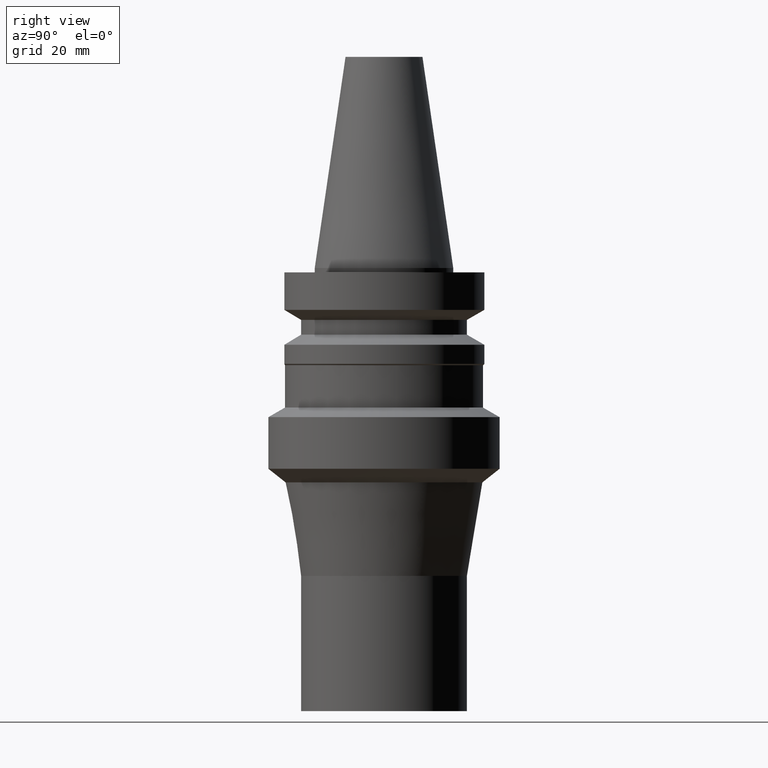
[diagram: clean part render]
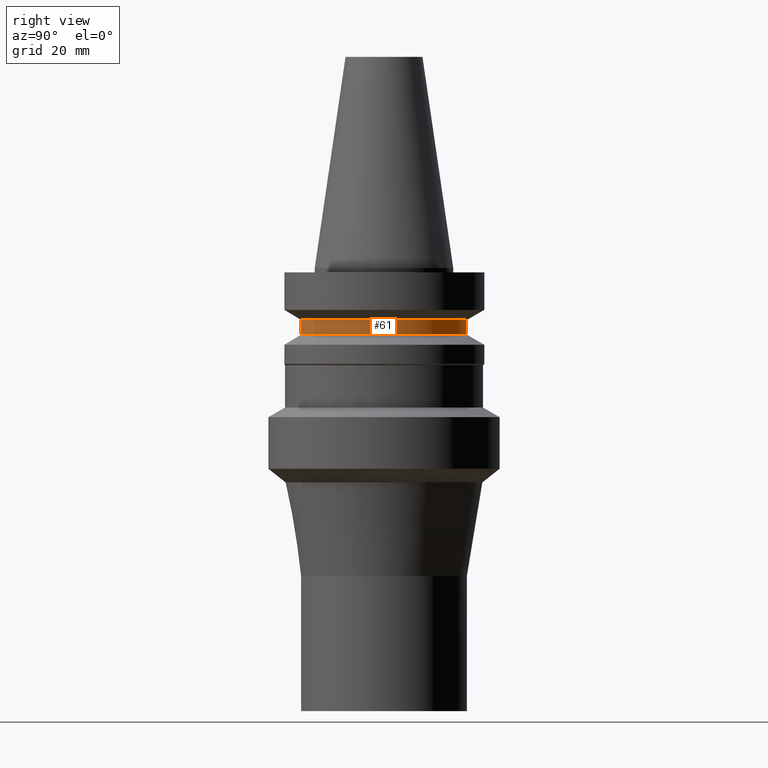
[diagram: same view with one face highlighted and labeled with its STEP entity id]
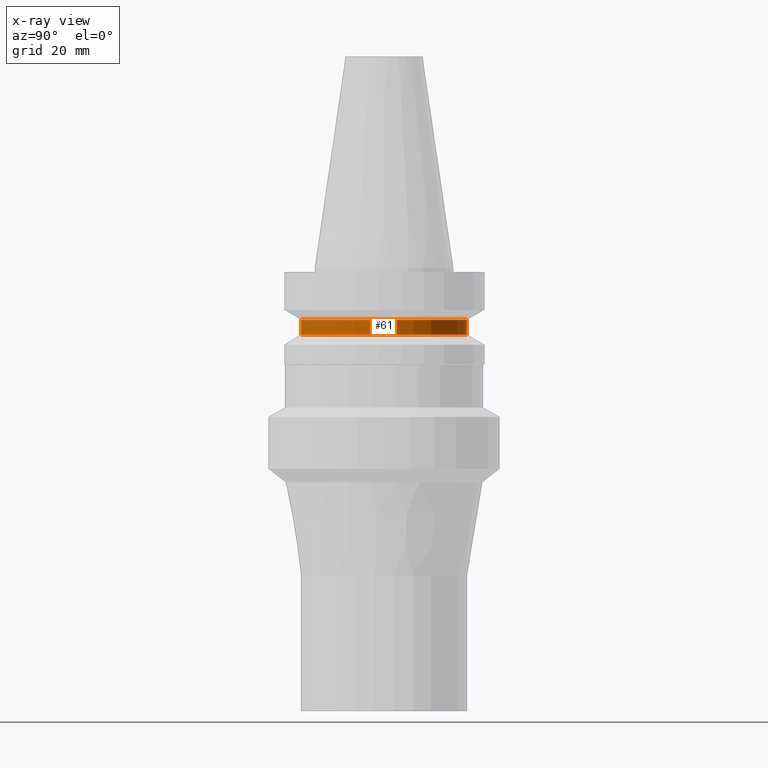
[diagram: x-ray of the same camera — body ghosted, the highlighted face saturated]
A machine part, right view. The second image highlights one B-rep face of the part: STEP entity #61.
The next image is the same camera in x-ray: the body ghosted, the highlighted face saturated — about 0% of this face is hidden behind the body in this view.
In plain terms, the highlighted cylindrical surface (bore or boss wall) has radius 19 mm, axis along (0, 0, -1).
Its self-contained STEP definition (entity closure, byte-faithful):
#61=ADVANCED_FACE('Unnamed[1]',(#164,#165),#166,.T.);
#78=EDGE_CURVE('Unnamed[1]',#191,#191,#192,.T.);
#134=EDGE_CURVE('Unnamed[1]',#278,#278,#279,.T.);
#164=FACE_BOUND('',#306,.T.);
#165=FACE_BOUND('',#307,.T.);
#166=CYLINDRICAL_SURFACE('',#308,19.0);
#191=VERTEX_POINT('',#340);
#192=CIRCLE('',#341,19.0);
#278=VERTEX_POINT('',#448);
#279=CIRCLE('',#449,19.0);
#306=EDGE_LOOP('',(#471));
#307=EDGE_LOOP('',(#472));
#308=AXIS2_PLACEMENT_3D('',#473,#474,#475);
#340=CARTESIAN_POINT('',(9.36279151221199E-016,19.0,-15.29059892));
#341=AXIS2_PLACEMENT_3D('',#502,#503,#504);
#448=CARTESIAN_POINT('',(7.29240495619202E-016,19.0,-11.90940108));
#449=AXIS2_PLACEMENT_3D('',#598,#599,#600);
#471=ORIENTED_EDGE('',*,*,#78,.F.);
#472=ORIENTED_EDGE('',*,*,#134,.T.);
#473=CARTESIAN_POINT('',(8.32759823420201E-016,1.6655196468404E-015,-13.6));
#474=DIRECTION('',(6.12323399573677E-017,1.22464679914735E-016,-1.0));
#475=DIRECTION('',(-1.23259516440783E-032,1.0,1.22464679914735E-016));
#502=CARTESIAN_POINT('',(9.36279151221199E-016,1.8725583024424E-015,-15.29059892));
#503=DIRECTION('',(6.12323399573677E-017,1.22464679914735E-016,-1.0));
#504=DIRECTION('',(-1.23259516440783E-032,1.0,1.22464679914735E-016));
#598=CARTESIAN_POINT('',(7.29240495619202E-016,1.4584809912384E-015,-11.90940108));
#599=DIRECTION('',(6.12323399573677E-017,1.22464679914735E-016,-1.0));
#600=DIRECTION('',(-1.23259516440783E-032,1.0,1.22464679914735E-016));